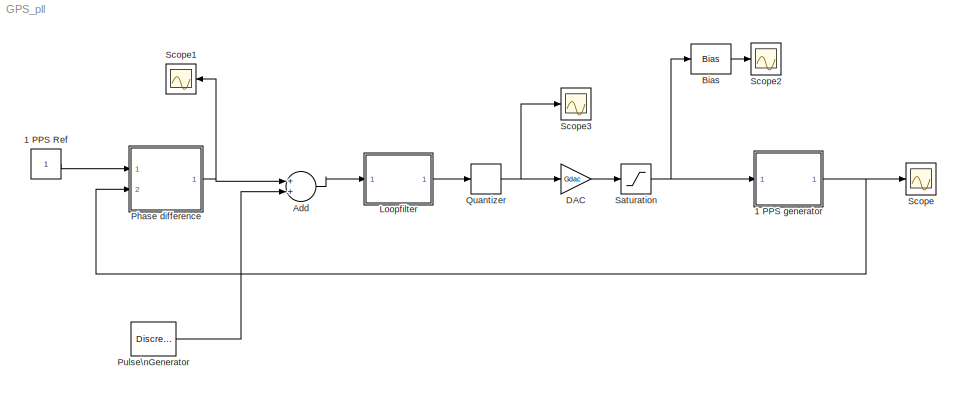
MODEL GPS_pll
KIND model
BLOCK [Constant] 1 PPS Ref
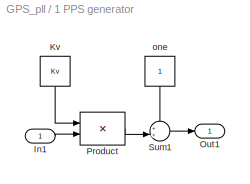
BLOCK [SubSystem] 1 PPS generator
  MinAlgLoopOccurrences = off
  Ports = [1, 1]
  RTWSystemCode = Auto
  TreatAsAtomicUnit = off
BLOCK [Inport] 1 PPS generator/In1
  IconDisplay = Port number
  LatchInput = off
  Port = 1
BLOCK [Constant] 1 PPS generator/Kv
  Value = Kv
BLOCK [Outport] 1 PPS generator/Out1
  BusOutputAsStruct = off
  IconDisplay = Port number
BLOCK [Product] 1 PPS generator/Product
  InputSameDT = off
  Ports = [2, 1]
  RndMeth = Floor
BLOCK [Sum] 1 PPS generator/Sum1
  IconShape = round
  InputSameDT = off
  Inputs = ++|
  OutDataTypeMode = Inherit via internal rule
  Ports = [2, 1]
BLOCK [Constant] 1 PPS generator/one
BLOCK [Sum] Add
  InputSameDT = off
  OutDataTypeMode = Inherit via internal rule
  OutScaling = 2^-10
  Ports = [2, 1]
  SaturateOnIntegerOverflow = off
BLOCK [Bias] Bias
  Bias = 3.3/2
  SaturateOnIntegerOverflow = off
BLOCK [Gain] DAC
  Gain = Gdac
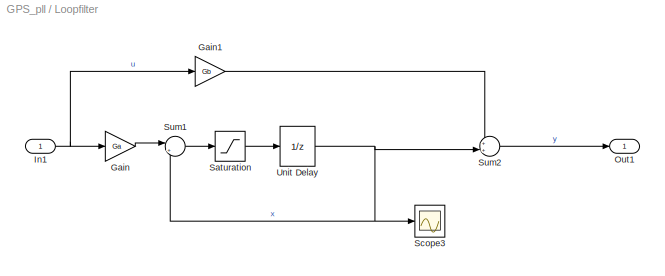
BLOCK [SubSystem] Loopfilter
  MinAlgLoopOccurrences = off
  Ports = [1, 1]
  RTWSystemCode = Auto
  TreatAsAtomicUnit = off
BLOCK [Gain] Loopfilter/Gain
  Gain = Ga
BLOCK [Gain] Loopfilter/Gain1
  Gain = Gb
BLOCK [Inport] Loopfilter/In1
  IconDisplay = Port number
  LatchInput = off
  Port = 1
BLOCK [Outport] Loopfilter/Out1
  BusOutputAsStruct = off
  IconDisplay = Port number
BLOCK [Saturate] Loopfilter/Saturation
  LowerLimit = -2^15*(3.3/5)
  UpperLimit = 2^15*(3.3/5)
BLOCK [Scope] Loopfilter/Scope3
  DataFormat = StructureWithTime
  LimitDataPoints = off
  NumInputPorts = 1
  Ports = [1]
  SampleInput = on
  SampleTime = 1
  SaveName = ScopeData4
  ZoomMode = xonly
BLOCK [Sum] Loopfilter/Sum1
  IconShape = round
  InputSameDT = off
  Inputs = |++
  OutDataTypeMode = Inherit via internal rule
  Ports = [2, 1]
BLOCK [Sum] Loopfilter/Sum2
  IconShape = round
  InputSameDT = off
  Inputs = ++|
  OutDataTypeMode = Inherit via internal rule
  Ports = [2, 1]
BLOCK [UnitDelay] Loopfilter/Unit Delay
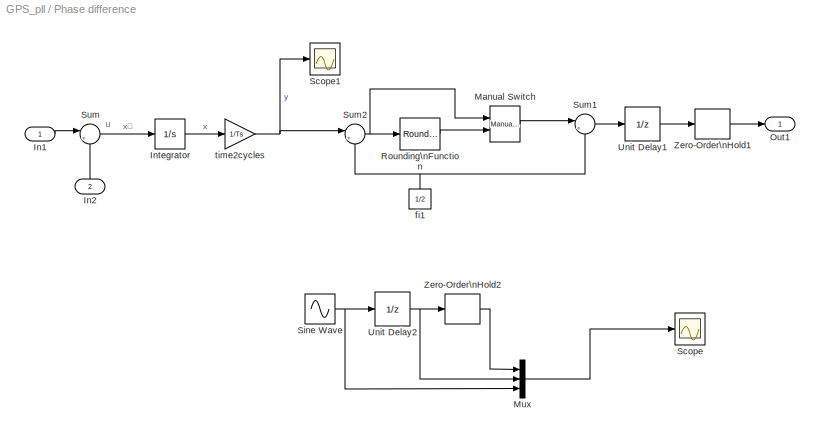
BLOCK [SubSystem] Phase difference
  MinAlgLoopOccurrences = off
  Ports = [2, 1]
  RTWSystemCode = Auto
  TreatAsAtomicUnit = off
BLOCK [Inport] Phase difference/In1
  IconDisplay = Port number
  LatchInput = off
  Port = 1
BLOCK [Inport] Phase difference/In2
  IconDisplay = Port number
  LatchInput = off
  Port = 2
BLOCK [Integrator] Phase difference/Integrator
  IgnoreLimit = off
  InitialCondition = 7000*Ts
  Ports = [1, 1]
BLOCK [Reference] Phase difference/Manual Switch  REF=simulink/Signal\nRouting/Manual Switch
  Ports = [2, 1]
  ShowPortLabels = on
  SourceBlock = simulink/Signal\nRouting/Manual Switch
  SourceType = Manual Switch
  action = 0
  sw = 0
BLOCK [Mux] Phase difference/Mux
  DisplayOption = bar
  Inputs = 3
  Ports = [3, 1]
BLOCK [Outport] Phase difference/Out1
  BusOutputAsStruct = off
  IconDisplay = Port number
BLOCK [Rounding] Phase difference/Rounding\nFunction
  Operator = round
BLOCK [Scope] Phase difference/Scope
  DataFormat = StructureWithTime
  NumInputPorts = 1
  Ports = [1]
  SampleInput = on
  SaveName = ScopeData6
  ZoomMode = xonly
BLOCK [Scope] Phase difference/Scope1
  DataFormat = StructureWithTime
  LimitDataPoints = off
  NumInputPorts = 1
  Ports = [1]
  SampleInput = on
  SampleTime = 1
  SaveName = ScopeData5
BLOCK [Sin] Phase difference/Sine Wave
  Ports = [0, 1]
  SampleTime = 0
  SineType = Time based
BLOCK [Sum] Phase difference/Sum
  IconShape = round
  InputSameDT = off
  Inputs = |+-
  OutDataTypeMode = Inherit via internal rule
  Ports = [2, 1]
BLOCK [Sum] Phase difference/Sum1
  IconShape = round
  InputSameDT = off
  Inputs = |++
  OutDataTypeMode = Inherit via internal rule
  Ports = [2, 1]
BLOCK [Sum] Phase difference/Sum2
  IconShape = round
  InputSameDT = off
  Inputs = |+-
  OutDataTypeMode = Inherit via internal rule
  Ports = [2, 1]
BLOCK [UnitDelay] Phase difference/Unit Delay1
  SampleTime = 0.5
BLOCK [UnitDelay] Phase difference/Unit Delay2
  SampleTime = 0.5
BLOCK [ZeroOrderHold] Phase difference/Zero-Order\nHold1
BLOCK [ZeroOrderHold] Phase difference/Zero-Order\nHold2
BLOCK [Constant] Phase difference/fi1
  Value = 1/2
BLOCK [Gain] Phase difference/time2cycles
  Gain = 1/Ts
BLOCK [DiscretePulseGenerator] Pulse\nGenerator
  Amplitude = 512
  Period = 1000
  Ports = [0, 1]
  PulseType = Time based
  PulseWidth = 50
BLOCK [Quantizer] Quantizer
  QuantizationInterval = 1
BLOCK [Saturate] Saturation
  LowerLimit = -3.3/2
  UpperLimit = 3.3/2
BLOCK [Scope] Scope
  DataFormat = StructureWithTime
  NumInputPorts = 1
  Ports = [1]
  ZoomMode = yonly
BLOCK [Scope] Scope1
  DataFormat = StructureWithTime
  LimitDataPoints = off
  NumInputPorts = 1
  Ports = [1]
  SampleInput = on
  SampleTime = 1
  SaveName = ScopeData1
  ZoomMode = yonly
BLOCK [Scope] Scope2
  DataFormat = StructureWithTime
  LimitDataPoints = off
  NumInputPorts = 1
  Ports = [1]
  SampleInput = on
  SampleTime = 1
  SaveName = ScopeData2
  TimeRange = 5.22433885907202
  YMax = 1.74
  YMin = 1.62
  ZoomMode = yonly
BLOCK [Scope] Scope3
  DataFormat = StructureWithTime
  LimitDataPoints = off
  NumInputPorts = 1
  Ports = [1]
  SampleInput = on
  SampleTime = 1
  SaveName = ScopeData3
  ZoomMode = yonly
ANNOTATION Phase difference: u
LINE 1 PPS Ref:1 -> Phase difference:1
LINE 1 PPS generator/In1:1 -> 1 PPS generator/Product:2
LINE 1 PPS generator/Kv:1 -> 1 PPS generator/Product:1
LINE 1 PPS generator/Product:1 -> 1 PPS generator/Sum1:2
LINE 1 PPS generator/Sum1:1 -> 1 PPS generator/Out1:1
LINE 1 PPS generator/one:1 -> 1 PPS generator/Sum1:1
NET 1 PPS generator:1 -> Phase difference:2, Scope:1
LINE Add:1 -> Loopfilter:1
LINE Bias:1 -> Scope2:1
LINE DAC:1 -> Saturation:1
LINE Loopfilter/Gain1:1 -> Loopfilter/Sum2:1
LINE Loopfilter/Gain:1 -> Loopfilter/Sum1:1
NET Loopfilter/In1:1 -> Loopfilter/Gain1:1, Loopfilter/Gain:1
LINE Loopfilter/Saturation:1 -> Loopfilter/Unit Delay:1
LINE Loopfilter/Sum1:1 -> Loopfilter/Saturation:1
LINE Loopfilter/Sum2:1 -> Loopfilter/Out1:1
NET Loopfilter/Unit Delay:1 -> Loopfilter/Scope3:1, Loopfilter/Sum1:2, Loopfilter/Sum2:2
LINE Loopfilter:1 -> Quantizer:1
LINE Phase difference/In1:1 -> Phase difference/Sum:1
LINE Phase difference/In2:1 -> Phase difference/Sum:2
LINE Phase difference/Integrator:1 -> Phase difference/time2cycles:1
LINE Phase difference/Manual Switch:1 -> Phase difference/Sum1:1
LINE Phase difference/Mux:1 -> Phase difference/Scope:1
LINE Phase difference/Rounding\nFunction:1 -> Phase difference/Manual Switch:2
NET Phase difference/Sine Wave:1 -> Phase difference/Mux:3, Phase difference/Unit Delay2:1
LINE Phase difference/Sum1:1 -> Phase difference/Unit Delay1:1
NET Phase difference/Sum2:1 -> Phase difference/Manual Switch:1, Phase difference/Rounding\nFunction:1
LINE Phase difference/Sum:1 -> Phase difference/Integrator:1
LINE Phase difference/Unit Delay1:1 -> Phase difference/Zero-Order\nHold1:1
NET Phase difference/Unit Delay2:1 -> Phase difference/Mux:2, Phase difference/Zero-Order\nHold2:1
LINE Phase difference/Zero-Order\nHold1:1 -> Phase difference/Out1:1
LINE Phase difference/Zero-Order\nHold2:1 -> Phase difference/Mux:1
NET Phase difference/fi1:1 -> Phase difference/Sum1:2, Phase difference/Sum2:2
NET Phase difference/time2cycles:1 -> Phase difference/Scope1:1, Phase difference/Sum2:1
NET Phase difference:1 -> Add:1, Scope1:1
LINE Pulse\nGenerator:1 -> Add:2
NET Quantizer:1 -> DAC:1, Scope3:1
NET Saturation:1 -> 1 PPS generator:1, Bias:1
note: NET lines group one-source signal fan-out (src -> all destinations, sorted); 1:1 wires keep LINE
